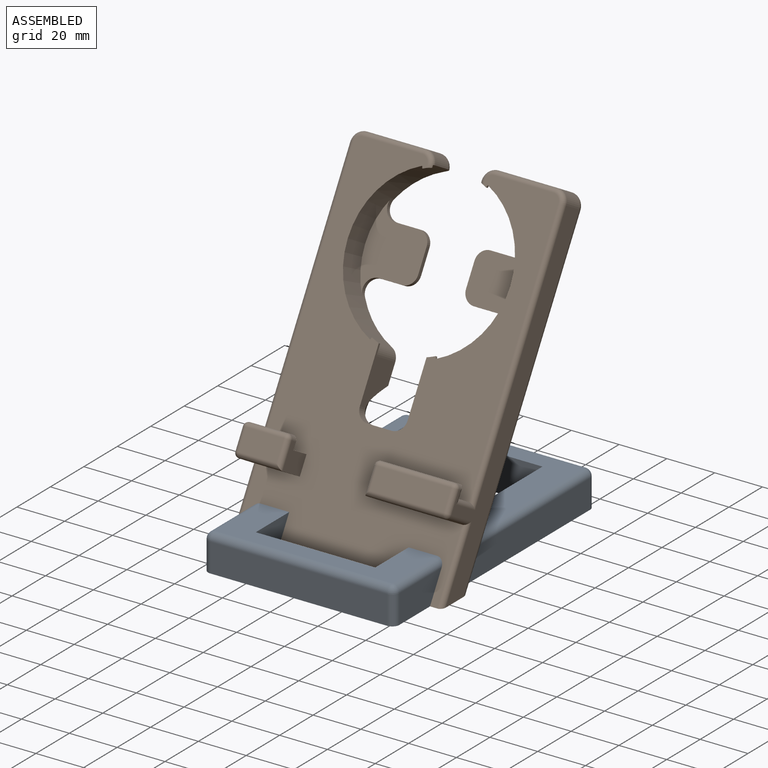
[diagram: assembled view]
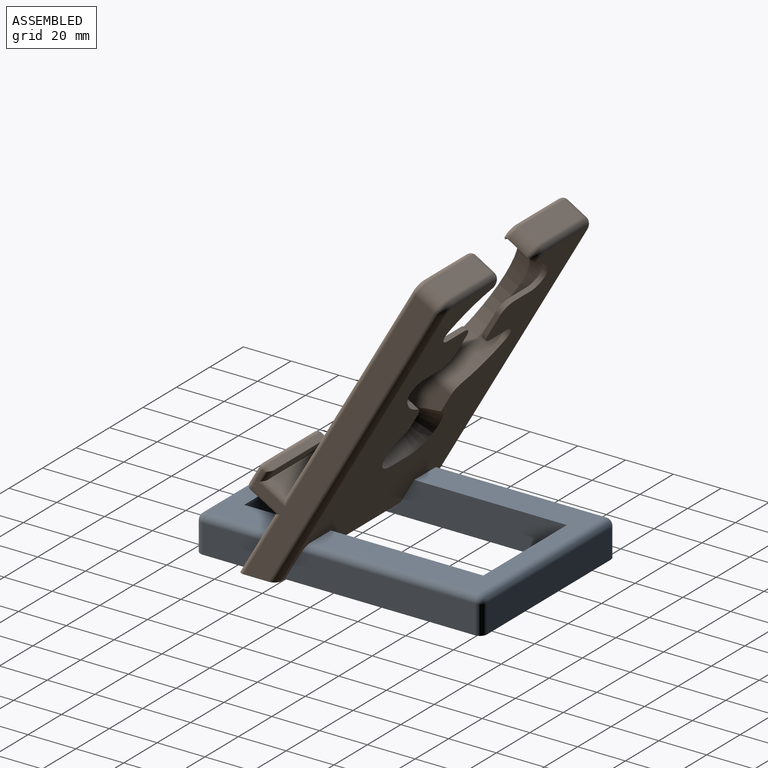
[diagram: assembled view, second angle]
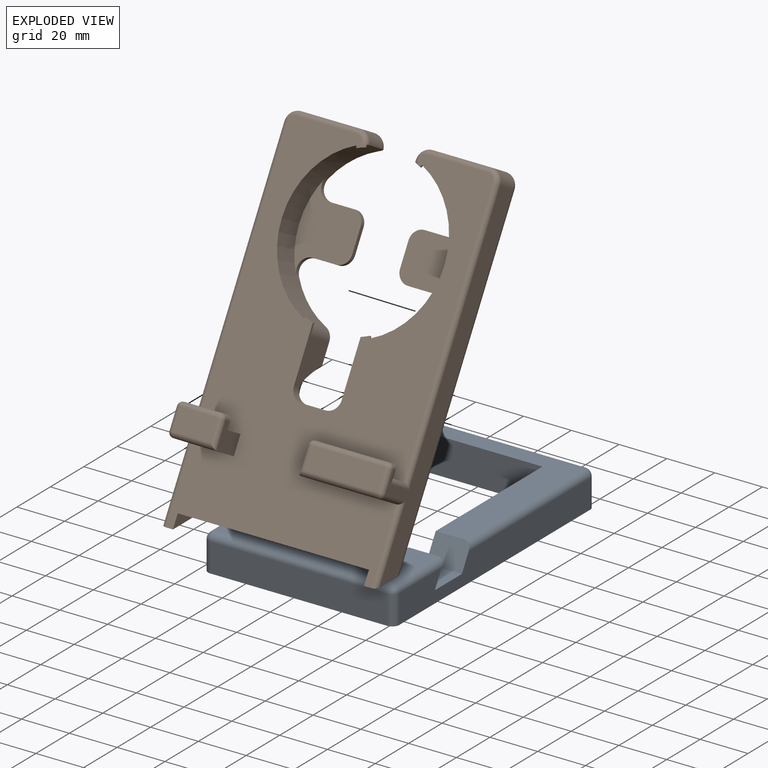
[diagram: exploded view]
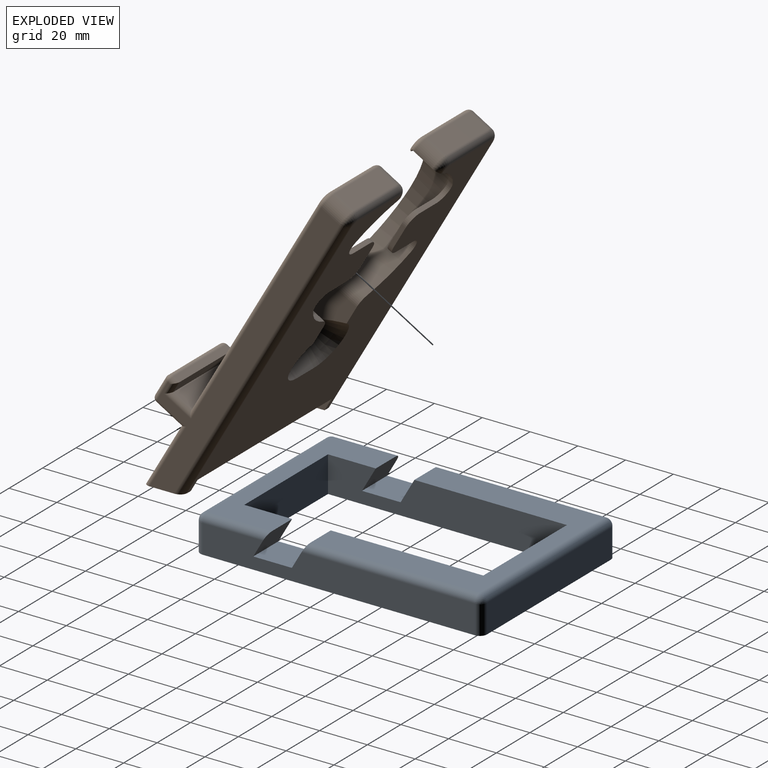
[diagram: exploded view, second angle]
ASSEMBLY  parts=2 mates=3
PART A: 31 faces, bbox 80x120x15 mm
  f0: plane 74x70.83mm, normal (0,0,1), area 2050mm2, adj f1,f2,f8,f11,f16,f24,f27,f28
  f1: plane 50x15mm, normal (0,-1,0), area 750mm2, adj f0,f2,f8,f10
  f2: plane 100x15mm, normal (-1,0,0), area 1338.3mm2, adj f0,f1,f3,f9,f10,f14,f15,f16
  f3: plane 50x15mm, normal (0,1,0), area 750mm2, adj f2,f8,f9,f10
  f4: plane 114x12mm, normal (1,0,0), area 1254.8mm2, adj f10,f14,f15,f16,f17,f18,f27,f30
  f5: plane 74x12mm, normal (0,1,0), area 888mm2, adj f10,f25,f28,f30
  f6: plane 114x12mm, normal (-1,0,0), area 1254.8mm2, adj f10,f11,f12,f13,f21,f23,f24,f25
  f7: plane 74x12mm, normal (0,-1,0), area 888mm2, adj f10,f18,f20,f21
  f8: plane 100x15mm, normal (1,0,0), area 1338.3mm2, adj f0,f1,f3,f9,f10,f11,f12,f13
  f9: plane 74x27mm, normal (0,0,1), area 998mm2, adj f2,f3,f8,f13,f15,f17,f20,f23
  f10: plane 120x80mm, normal (0,0,-1), area 4592.3mm2, adj f1,f2,f3,f4,f5,f6,f7,f8
  f11: plane 15x10mm, normal (0,-0.87,0.5), area 171mm2, adj f0,f6,f8,f12,f24
  f12: plane 16.17x15mm, normal (0,0,1), area 242.5mm2, adj f6,f8,f11,f13
  f13: plane 15x10mm, normal (0,0.87,-0.5), area 171mm2, adj f6,f8,f9,f12,f23
  f14: plane 16.17x15mm, normal (0,0,1), area 242.5mm2, adj f2,f4,f15,f16
  f15: plane 15x10mm, normal (0,0.87,-0.5), area 171mm2, adj f2,f4,f9,f14,f17
  f16: plane 15x10mm, normal (0,-0.87,0.5), area 171mm2, adj f0,f2,f4,f14,f27
  f17: cylinder r=3mm len=27mm, axis (0,-1,0), area 124.3mm2, adj f4,f9,f15,f19
  f18: cylinder r=3mm len=12mm, axis (0,0,-1), area 56.5mm2, adj f4,f7,f10,f19
  f19: sphere r=3mm, area 14.1mm2, adj f17,f18,f20
  f20: cylinder r=3mm len=74mm, axis (-1,0,0), area 348.7mm2, adj f7,f9,f19,f22
  f21: cylinder r=3mm len=12mm, axis (0,0,1), area 56.5mm2, adj f6,f7,f10,f22
  f22: sphere r=3mm, area 14.1mm2, adj f20,f21,f23
  f23: cylinder r=3mm len=27mm, axis (0,1,0), area 124.3mm2, adj f6,f9,f13,f22
  f24: cylinder r=3mm len=72.57mm, axis (0,1,0), area 336.8mm2, adj f0,f6,f11,f26
  f25: cylinder r=3mm len=12mm, axis (0,0,-1), area 56.5mm2, adj f5,f6,f10,f26
  f26: sphere r=3mm, area 14.1mm2, adj f24,f25,f28
  f27: cylinder r=3mm len=72.57mm, axis (0,-1,0), area 336.8mm2, adj f0,f4,f16,f29
  f28: cylinder r=3mm len=74mm, axis (1,0,0), area 348.7mm2, adj f0,f5,f26,f29
  f29: sphere r=3mm, area 14.1mm2, adj f27,f28,f30
  f30: cylinder r=3mm len=12mm, axis (0,0,1), area 56.5mm2, adj f4,f5,f10,f29
PART B: 109 faces, bbox 90.8x87x130.9 mm
  f0: cylinder r=34mm len=62.32mm, axis (0,-0.87,0.5), area 1084.2mm2, adj f8,f10,f35,f42,f44,f46,f47,f48
  f1: cylinder r=34mm len=62.32mm, axis (0,-0.87,0.5), area 1084.2mm2, adj f8,f10,f31,f36,f38,f40,f41,f54
  f2: plane 25x7.79mm, normal (0,0.5,0.87), area 225mm2, adj f57,f62,f70,f92
  f3: plane 33x10.39mm, normal (0,-0.5,-0.87), area 396mm2, adj f8,f24,f76,f101
  f4: plane 16x2.6mm, normal (0,0.5,0.87), area 48mm2, adj f19,f79,f81,f104
  f5: plane 16x7.79mm, normal (0,-0.87,0.5), area 144mm2, adj f77,f78,f79,f106
  f6: plane 33x7.79mm, normal (0,0.5,0.87), area 297mm2, adj f7,f8,f24,f95
  f7: plane 33x4.33mm, normal (0,0.87,-0.5), area 164.1mm2, adj f6,f21,f24,f72,f96
  f8: plane 128.17x86mm, normal (0,-0.87,0.5), area 7688.9mm2, adj f0,f1,f3,f6,f9,f11,f15,f16
  f9: plane 16.17x5mm, normal (0,0,-1), area 77.6mm2, adj f8,f10,f13,f15,f82,f87
  f10: plane 120.31x84mm, normal (0,0.87,-0.5), area 7745mm2, adj f0,f1,f9,f11,f15,f16,f17,f25
  f11: plane 16.17x5mm, normal (0,0,-1), area 77.6mm2, adj f8,f10,f14,f17,f83,f94
  f12: plane 25x7.79mm, normal (0,0.5,0.87), area 225mm2, adj f56,f63,f66,f89
  f13: plane 124.57x79.72mm, normal (1,0,0), area 1332.2mm2, adj f9,f63,f64,f82,f87,f95,f96,f97
  f14: plane 124.57x79.72mm, normal (-1,0,0), area 1332.2mm2, adj f11,f62,f68,f83,f94,f102,f103,f104
  f15: plane 19.05x5mm, normal (-1,0,0), area 80.8mm2, adj f8,f9,f10,f16
  f16: plane 80x16.17mm, normal (0,0,-1), area 1293.3mm2, adj f8,f10,f15,f17
  f17: plane 19.05x5mm, normal (1,0,0), area 80.8mm2, adj f8,f10,f11,f16
  f18: plane 18x7.79mm, normal (0,0.5,0.87), area 162mm2, adj f8,f19,f23,f102
  f19: plane 18x4.33mm, normal (0,0.87,-0.5), area 89.1mm2, adj f4,f18,f23,f81,f103
  f20: plane 18x10.39mm, normal (0,-0.5,-0.87), area 216mm2, adj f8,f23,f77,f108
  f21: plane 31x2.6mm, normal (0,0.5,0.87), area 93mm2, adj f7,f72,f73,f97
  f22: plane 31x7.79mm, normal (0,-0.87,0.5), area 279mm2, adj f73,f75,f76,f99
  f23: plane 15.53x14.39mm, normal (1,0,0), area 105mm2, adj f8,f18,f19,f20,f78,f81
  f24: plane 15.53x14.39mm, normal (-1,0,0), area 105mm2, adj f3,f6,f7,f8,f72,f75
  f25: plane 21.53x21.12mm, normal (1,0,0), area 197.9mm2, adj f8,f10,f43,f44,f59,f61,f84
  f26: plane 10x3.46mm, normal (0,0.5,0.87), area 40mm2, adj f8,f60,f61,f85
  f27: plane 21.53x21.12mm, normal (-1,0,0), area 197.9mm2, adj f8,f10,f37,f38,f58,f60,f86
  f28: plane 9.82x1.73mm, normal (0,0.5,0.87), area 19.6mm2, adj f10,f31,f52,f55
  f29: plane 9.82x1.73mm, normal (0,-0.5,-0.87), area 19.6mm2, adj f10,f31,f53,f54
  f30: plane 9.66x6.73mm, normal (-1,0,0), area 20mm2, adj f10,f31,f52,f53
  f31: plane 30.46x24mm, normal (0,-0.87,0.5), area 488.9mm2, adj f1,f28,f29,f30,f52,f53,f54,f55
  f32: plane 9.82x1.73mm, normal (0,0.5,0.87), area 19.6mm2, adj f10,f35,f48,f49
  f33: plane 9.66x6.73mm, normal (1,0,0), area 20mm2, adj f10,f35,f49,f50
  f34: plane 9.82x1.73mm, normal (0,-0.5,-0.87), area 19.6mm2, adj f10,f35,f50,f51
  f35: plane 30.46x24mm, normal (0,-0.87,0.5), area 488.9mm2, adj f0,f32,f33,f34,f48,f49,f50,f51
  f36: plane 1.32x1.29mm, normal (0.91,0.2,0.35), area 1mm2, adj f1,f8,f37,f38
  f37: cylinder r=33mm len=3.34mm, axis (0,-0.87,0.5), area 3.6mm2, adj f8,f27,f36,f38
  f38: plane 5.04x3.75mm, normal (0,0.87,-0.5), area 5.9mm2, adj f1,f27,f36,f37,f58
  f39: cylinder r=33mm len=3.03mm, axis (0,-0.87,0.5), area 2.7mm2, adj f8,f40,f41,f67
  f40: plane 1.32x1.29mm, normal (0.91,-0.2,-0.35), area 1mm2, adj f1,f8,f39,f41
  f41: plane 3.48x1.93mm, normal (0,0.87,-0.5), area 3.5mm2, adj f1,f39,f40,f67
  f42: plane 1.32x1.29mm, normal (-0.91,0.2,0.35), area 1mm2, adj f0,f8,f43,f44
  f43: cylinder r=33mm len=3.34mm, axis (0,-0.87,0.5), area 3.6mm2, adj f8,f25,f42,f44
  f44: plane 5.04x3.75mm, normal (0,0.87,-0.5), area 5.9mm2, adj f0,f25,f42,f43,f59
  f45: cylinder r=33mm len=3.03mm, axis (0,-0.87,0.5), area 2.7mm2, adj f8,f46,f47,f71
  f46: plane 1.32x1.29mm, normal (-0.91,-0.2,-0.35), area 1mm2, adj f0,f8,f45,f47
  f47: plane 3.48x1.93mm, normal (0,0.87,-0.5), area 3.5mm2, adj f0,f45,f46,f71
  f48: cylinder r=5mm len=7.57mm, axis (0,-0.87,0.5), area 21.1mm2, adj f0,f10,f32,f35
  f49: cylinder r=5mm len=5.33mm, axis (0,0.87,-0.5), area 15.7mm2, adj f10,f32,f33,f35
  f50: cylinder r=5mm len=5.33mm, axis (0,0.87,-0.5), area 15.7mm2, adj f10,f33,f34,f35
  f51: cylinder r=5mm len=7.57mm, axis (0,-0.87,0.5), area 21.1mm2, adj f0,f10,f34,f35
  f52: cylinder r=5mm len=5.33mm, axis (0,0.87,-0.5), area 15.7mm2, adj f10,f28,f30,f31
  f53: cylinder r=5mm len=5.33mm, axis (0,0.87,-0.5), area 15.7mm2, adj f10,f29,f30,f31
  f54: cylinder r=5mm len=7.57mm, axis (0,-0.87,0.5), area 21.1mm2, adj f1,f10,f29,f31
  f55: cylinder r=5mm len=7.57mm, axis (0,-0.87,0.5), area 21.1mm2, adj f1,f10,f28,f31
  f56: cylinder r=5mm len=10.05mm, axis (0,-0.87,0.5), area 66.3mm2, adj f1,f12,f67,f90
  f57: cylinder r=5mm len=10.05mm, axis (0,0.87,-0.5), area 66.3mm2, adj f0,f2,f71,f91
  f58: cylinder r=5mm len=13.57mm, axis (0,-0.87,0.5), area 76.4mm2, adj f1,f10,f27,f38
  f59: cylinder r=5mm len=13.57mm, axis (0,-0.87,0.5), area 76.4mm2, adj f0,f10,f25,f44
  f60: cylinder r=5mm len=6.33mm, axis (0,-0.87,0.5), area 31.4mm2, adj f8,f26,f27,f86
  f61: cylinder r=5mm len=6.33mm, axis (0,0.87,-0.5), area 31.4mm2, adj f8,f25,f26,f84
  f62: cylinder r=5mm len=10.29mm, axis (0,-0.87,0.5), area 70.7mm2, adj f2,f14,f69,f93
  f63: cylinder r=5mm len=10.29mm, axis (0,0.87,-0.5), area 70.7mm2, adj f12,f13,f65,f88
  f64: cylinder r=2mm len=95.4mm, axis (0,0.5,0.87), area 338.4mm2, adj f8,f13,f65,f95
  f65: torus R=3mm, axis (0,0.87,-0.5), area 21.1mm2, adj f8,f63,f64,f66
  f66: cylinder r=2mm len=25mm, axis (-1,0,0), area 78.5mm2, adj f8,f12,f65,f67
  f67: torus R=3mm, axis (0,0.87,-0.5), area 22.7mm2, adj f1,f8,f39,f41,f56,f66
  f68: cylinder r=2mm len=95.4mm, axis (0,-0.5,-0.87), area 338.4mm2, adj f8,f14,f69,f102
  f69: torus R=3mm, axis (0,0.87,-0.5), area 21.1mm2, adj f8,f62,f68,f70
  f70: cylinder r=2mm len=25mm, axis (-1,0,0), area 78.5mm2, adj f2,f8,f69,f71
  f71: torus R=3mm, axis (0,0.87,-0.5), area 22.7mm2, adj f0,f8,f45,f47,f57,f70
  f72: cylinder r=2mm len=3.6mm, axis (0,0.87,-0.5), area 9.4mm2, adj f7,f21,f24,f74
  f73: cylinder r=2mm len=31mm, axis (1,0,0), area 97.4mm2, adj f21,f22,f74,f98
  f74: sphere r=2mm, area 6.3mm2, adj f72,f73,f75
  f75: cylinder r=2mm len=10.53mm, axis (0,0.5,0.87), area 32.3mm2, adj f22,f24,f74,f76
  f76: cylinder r=2mm len=33mm, axis (1,0,0), area 101.4mm2, adj f3,f22,f75,f100
  f77: cylinder r=2mm len=18mm, axis (1,0,0), area 54.3mm2, adj f5,f20,f78,f107
  f78: cylinder r=2mm len=10.53mm, axis (0,-0.5,-0.87), area 32.3mm2, adj f5,f23,f77,f80
  f79: cylinder r=2mm len=16mm, axis (1,0,0), area 50.3mm2, adj f4,f5,f80,f105
  f80: sphere r=2mm, area 6.3mm2, adj f78,f79,f81
  f81: cylinder r=2mm len=3.6mm, axis (0,-0.87,0.5), area 9.4mm2, adj f4,f19,f23,f80
  f82: cylinder r=2mm len=28.71mm, axis (0,0.5,0.87), area 95.2mm2, adj f8,f9,f13,f101
  f83: cylinder r=2mm len=28.71mm, axis (0,-0.5,-0.87), area 95.2mm2, adj f8,f11,f14,f108
  f84: cone r=10.77mm half-angle=30deg, axis (0,0.87,-0.5), area 221.6mm2, adj f10,f25,f61,f85
  f85: plane 10x10mm, normal (0,0.87,0.5), area 115.5mm2, adj f10,f26,f84,f86
  f86: cone r=10.77mm half-angle=30deg, axis (0,0.87,-0.5), area 221.6mm2, adj f10,f27,f60,f85
  f87: cylinder r=3mm len=121.57mm, axis (0,-0.5,-0.87), area 648.2mm2, adj f9,f10,f13,f88
  f88: torus R=2mm, axis (0,-0.87,0.5), area 28.9mm2, adj f10,f63,f87,f89
  f89: cylinder r=3mm len=25mm, axis (-1,0,0), area 117.8mm2, adj f10,f12,f88,f90
  f90: torus R=2mm, axis (0,-0.87,0.5), area 28.4mm2, adj f1,f10,f56,f89
  f91: torus R=2mm, axis (0,-0.87,0.5), area 28.4mm2, adj f0,f10,f57,f92
  f92: cylinder r=3mm len=25mm, axis (-1,0,0), area 117.8mm2, adj f2,f10,f91,f93
  f93: torus R=2mm, axis (0,-0.87,0.5), area 28.9mm2, adj f10,f62,f92,f94
  f94: cylinder r=3mm len=121.57mm, axis (0,0.5,0.87), area 648.2mm2, adj f10,f11,f14,f93
  f95: cylinder r=2mm len=12.26mm, axis (0,-0.87,0.5), area 32.8mm2, adj f6,f13,f64,f96
  f96: cylinder r=2mm len=7.06mm, axis (0,0.5,0.87), area 15.7mm2, adj f7,f13,f95,f97
  f97: cylinder r=2mm len=3.6mm, axis (0,-0.87,0.5), area 7.1mm2, adj f13,f21,f96,f98
  f98: sphere r=2mm, area 6.3mm2, adj f73,f97,f99
  f99: cylinder r=2mm len=8.79mm, axis (0,-0.5,-0.87), area 28.3mm2, adj f13,f22,f98,f100
  f100: sphere r=2mm, area 6.3mm2, adj f76,f99,f101
  f101: cylinder r=2mm len=13.12mm, axis (0,0.87,-0.5), area 40mm2, adj f3,f13,f82,f100
  f102: cylinder r=2mm len=12.26mm, axis (0,-0.87,0.5), area 32.8mm2, adj f14,f18,f68,f103
  f103: cylinder r=2mm len=7.06mm, axis (0,0.5,0.87), area 15.7mm2, adj f14,f19,f102,f104
  f104: cylinder r=2mm len=3.6mm, axis (0,-0.87,0.5), area 7.1mm2, adj f4,f14,f103,f105
  f105: sphere r=2mm, area 6.3mm2, adj f79,f104,f106
  f106: cylinder r=2mm len=8.79mm, axis (0,-0.5,-0.87), area 28.3mm2, adj f5,f14,f105,f107
  f107: sphere r=2mm, area 6.3mm2, adj f77,f106,f108
  f108: cylinder r=2mm len=13.12mm, axis (0,0.87,-0.5), area 40mm2, adj f14,f20,f83,f107
PLACE A at identity fixed
PLACE B t=(0,-38.66,0)mm
MATE planar B.f8 <-> A.f15  axis (0,-0.87,0.5) through (-0.27,-7.66,53.69)mm
MATE planar A.f4 <-> B.f15  axis (1,0,0) through (40,-35.77,5)mm
MATE planar B.f16 <-> A.f14  axis (0,0,-1) through (0,-27.69,5)mm
